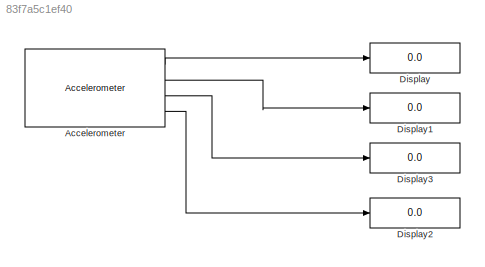
MODEL slx_83f7a5c1ef40
KIND model
CONFIG AbsTol = auto
CONFIG EnableMultiTasking = on
CONFIG FixedStep = auto
CONFIG MaxStep = auto
CONFIG MinStep = auto
CONFIG RelTol = 1e-3
CONFIG SampleTimeConstraint = Unconstrained
CONFIG SolverName = FixedStepAuto
CONFIG StartTime = 0.0
CONFIG StopTime = Inf
BLOCK [Reference] Accelerometer  REF=px4Sensorslib/Accelerometer
  Ports = [0, 4]
  SourceBlock = px4Sensorslib/Accelerometer
  SourceProductBaseCode = PX4AUTOPILOTS
  SourceType = PX4 Accelerometer
BLOCK [Display] Display
  Decimation = 1
  Ports = [1]
BLOCK [Display] Display1
  Decimation = 1
  Ports = [1]
BLOCK [Display] Display2
  Decimation = 1
  Ports = [1]
BLOCK [Display] Display3
  Decimation = 1
  Ports = [1]
LINE Accelerometer:1 -> Display:1
LINE Accelerometer:2 -> Display1:1
LINE Accelerometer:3 -> Display3:1
LINE Accelerometer:4 -> Display2:1
